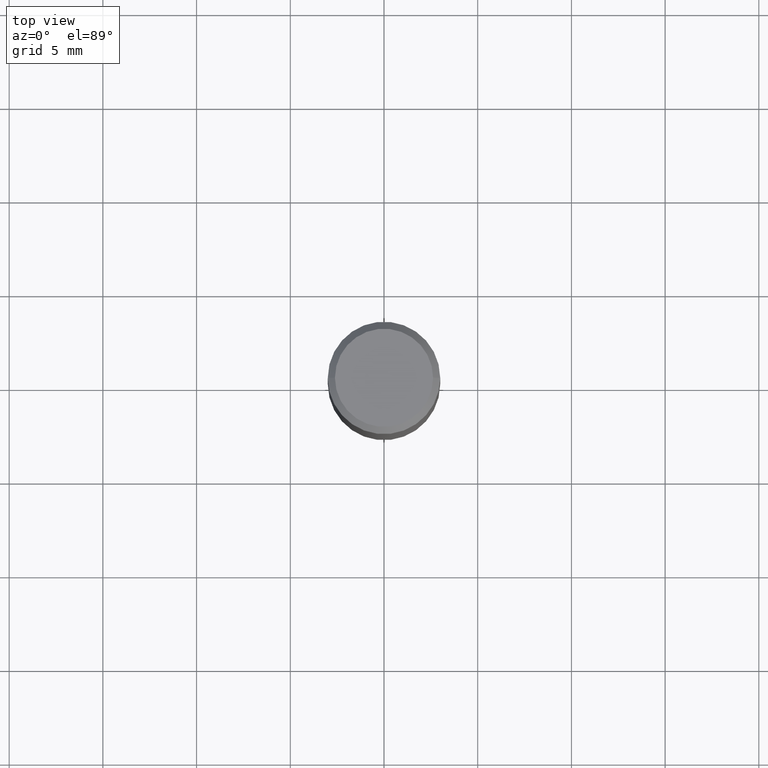
[diagram: clean part render]
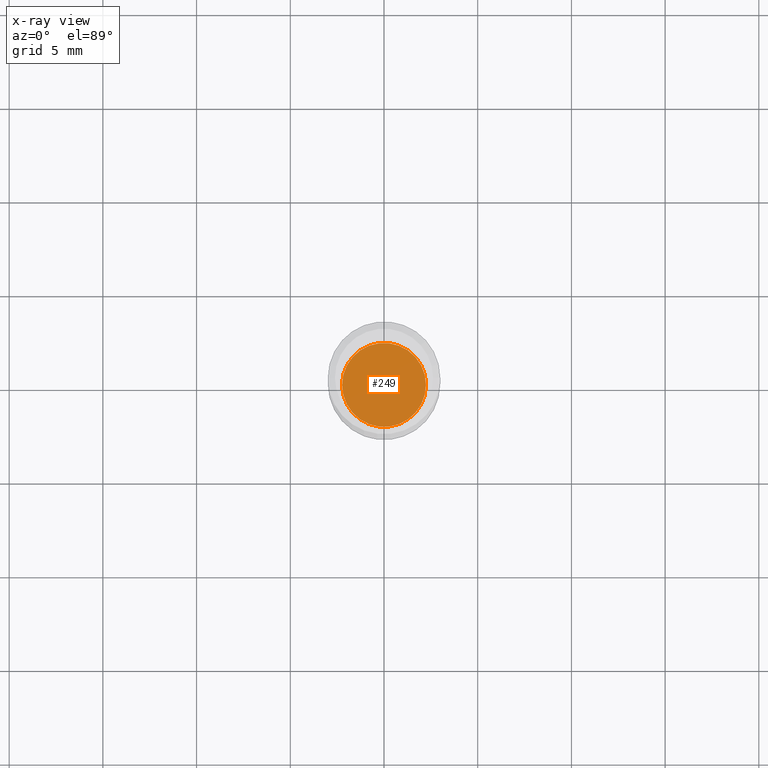
[diagram: x-ray — body ghosted, one internal face saturated and labeled with its STEP entity id]
A machine part, top view, then the same camera in x-ray: the body is ghosted and one INTERNAL B-rep face — a face not visible from any outside direction — is saturated and labeled: STEP entity #249.
In plain terms, the highlighted planar face has unit normal (-0, 0, 1).
Its self-contained STEP definition (entity closure, byte-faithful):
#7 = CARTESIAN_POINT ( 'NONE',  ( 2.127802408261687534E-29, -3.037937912927420812E-15, -0.8700999999999999845 ) ) ;
#8 = EDGE_LOOP ( 'NONE', ( #238, #308 ) ) ;
#28 = VERTEX_POINT ( 'NONE', #386 ) ;
#61 = DIRECTION ( 'NONE',  ( 1.000000000000000000, -6.982962677686264344E-15, 0.000000000000000000 ) ) ;
#67 = CIRCLE ( 'NONE', #332, 0.08809999999999999776 ) ;
#99 = CARTESIAN_POINT ( 'NONE',  ( 2.127802408261687534E-29, -3.037937912927421601E-15, -0.8701000000000000956 ) ) ;
#121 = CARTESIAN_POINT ( 'NONE',  ( 2.127802408261687534E-29, -3.037937912927420812E-15, -0.8700999999999999845 ) ) ;
#136 = FACE_OUTER_BOUND ( 'NONE', #8, .T. ) ;
#149 = AXIS2_PLACEMENT_3D ( 'NONE', #99, #244, #294 ) ;
#158 = CARTESIAN_POINT ( 'NONE',  ( -0.08809999999999999776, -2.409300535548661264E-15, -0.8700999999999999845 ) ) ;
#223 = AXIS2_PLACEMENT_3D ( 'NONE', #121, #239, #61 ) ;
#238 = ORIENTED_EDGE ( 'NONE', *, *, #411, .F. ) ;
#239 = DIRECTION ( 'NONE',  ( -2.445468806185136597E-29, 3.491481338843145583E-15, 1.000000000000000000 ) ) ;
#244 = DIRECTION ( 'NONE',  ( -2.438088387897960049E-29, 3.491481338843145188E-15, 1.000000000000000000 ) ) ;
#249 = ADVANCED_FACE ( 'NONE', ( #136 ), #283, .F. ) ;
#283 = PLANE ( 'NONE',  #149 ) ;
#292 = EDGE_CURVE ( 'NONE', #412, #28, #355, .T. ) ;
#294 = DIRECTION ( 'NONE',  ( 1.000000000000000000, -6.982962677686265922E-15, 4.876176775795935793E-29 ) ) ;
#300 = DIRECTION ( 'NONE',  ( -2.445468806185136597E-29, 3.491481338843145583E-15, 1.000000000000000000 ) ) ;
#308 = ORIENTED_EDGE ( 'NONE', *, *, #292, .F. ) ;
#332 = AXIS2_PLACEMENT_3D ( 'NONE', #7, #300, #452 ) ;
#355 = CIRCLE ( 'NONE', #223, 0.08809999999999999776 ) ;
#386 = CARTESIAN_POINT ( 'NONE',  ( 0.08809999999999999776, -3.653136924831581152E-15, -0.8700999999999999845 ) ) ;
#411 = EDGE_CURVE ( 'NONE', #28, #412, #67, .T. ) ;
#412 = VERTEX_POINT ( 'NONE', #158 ) ;
#452 = DIRECTION ( 'NONE',  ( 1.000000000000000000, -6.982962677686264344E-15, 0.000000000000000000 ) ) ;